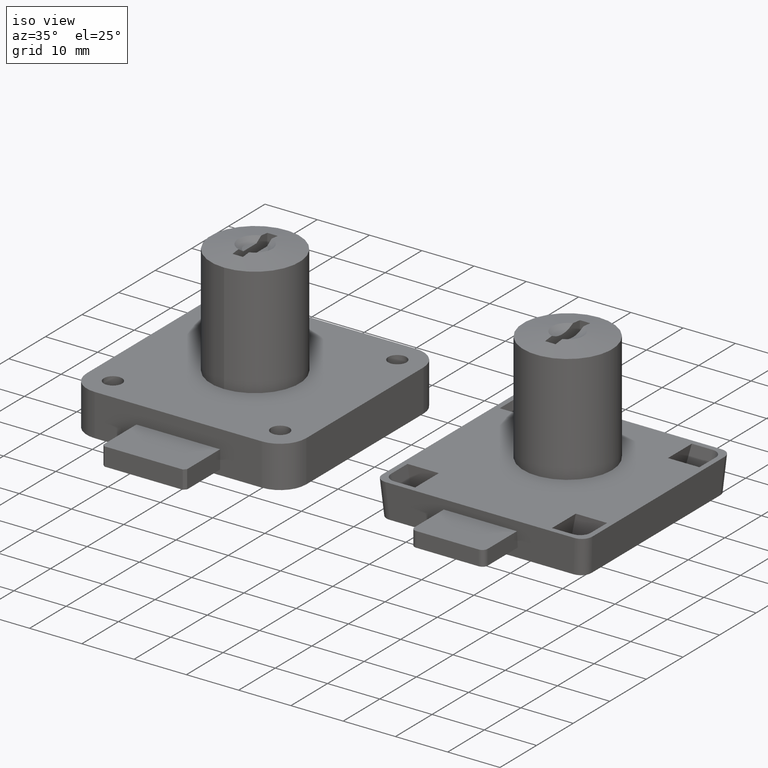
[diagram: clean part render]
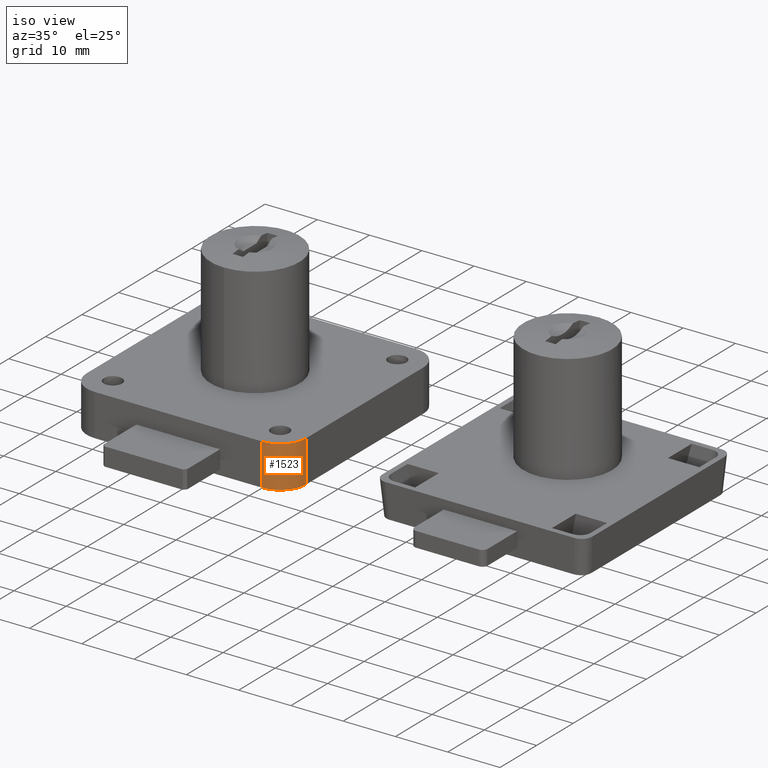
[diagram: same view with one face highlighted and labeled with its STEP entity id]
A machine part, iso view. The second image highlights one B-rep face of the part: STEP entity #1523.
In plain terms, the highlighted cylindrical surface (edge-blend (fillet) strip) has radius 5 mm, axis along (0, 0, 1).
Its self-contained STEP definition (entity closure, byte-faithful):
#43=CYLINDRICAL_SURFACE('',#1642,5.);
#131=FACE_OUTER_BOUND('',#232,.T.);
#232=EDGE_LOOP('',(#1100,#1101,#1102,#1103));
#349=LINE('',#2366,#483);
#350=LINE('',#2372,#484);
#483=VECTOR('',#1864,8.);
#484=VECTOR('',#1871,8.);
#629=CIRCLE('',#1643,5.);
#630=CIRCLE('',#1644,5.);
#701=VERTEX_POINT('',#2362);
#702=VERTEX_POINT('',#2364);
#703=VERTEX_POINT('',#2368);
#704=VERTEX_POINT('',#2370);
#859=EDGE_CURVE('',#701,#702,#349,.T.);
#860=EDGE_CURVE('',#701,#703,#629,.T.);
#861=EDGE_CURVE('',#704,#702,#630,.T.);
#862=EDGE_CURVE('',#703,#704,#350,.T.);
#1100=ORIENTED_EDGE('',*,*,#860,.F.);
#1101=ORIENTED_EDGE('',*,*,#859,.T.);
#1102=ORIENTED_EDGE('',*,*,#861,.F.);
#1103=ORIENTED_EDGE('',*,*,#862,.F.);
#1523=ADVANCED_FACE('',(#131),#43,.T.);
#1642=AXIS2_PLACEMENT_3D('',#2367,#1865,#1866);
#1643=AXIS2_PLACEMENT_3D('',#2369,#1867,#1868);
#1644=AXIS2_PLACEMENT_3D('',#2371,#1869,#1870);
#1864=DIRECTION('',(0.,0.,1.));
#1865=DIRECTION('center_axis',(0.,0.,1.));
#1866=DIRECTION('ref_axis',(0.,1.,0.));
#1867=DIRECTION('center_axis',(0.,0.,-1.));
#1868=DIRECTION('ref_axis',(0.,1.,0.));
#1869=DIRECTION('center_axis',(0.,0.,1.));
#1870=DIRECTION('ref_axis',(0.,1.,0.));
#1871=DIRECTION('',(0.,0.,1.));
#2362=CARTESIAN_POINT('',(21.,-16.,0.));
#2364=CARTESIAN_POINT('',(21.,-16.,8.));
#2366=CARTESIAN_POINT('',(21.,-16.,0.));
#2367=CARTESIAN_POINT('Origin',(16.,-16.,0.));
#2368=CARTESIAN_POINT('',(16.,-21.,0.));
#2369=CARTESIAN_POINT('Origin',(16.,-16.,0.));
#2370=CARTESIAN_POINT('',(16.,-21.,8.));
#2371=CARTESIAN_POINT('Origin',(16.,-16.,8.));
#2372=CARTESIAN_POINT('',(16.,-21.,0.));